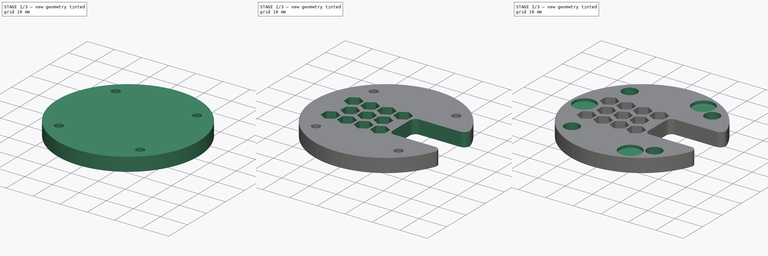
[diagram: build sequence overview — one tinted view per stage of 3, left to right]
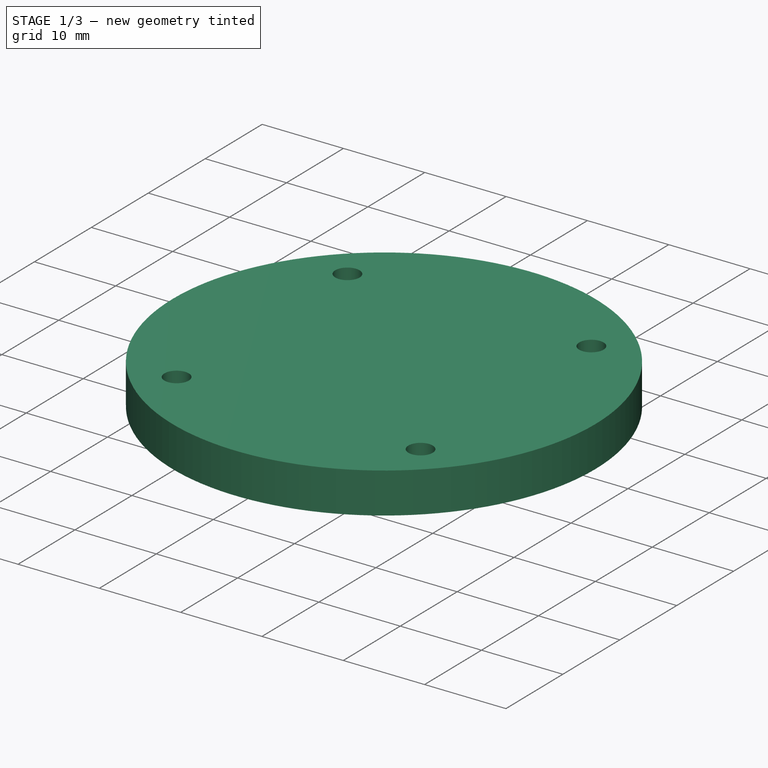
[diagram: stage 1 of 3 — iso view after this stage's code; geometry added in this stage tinted green]
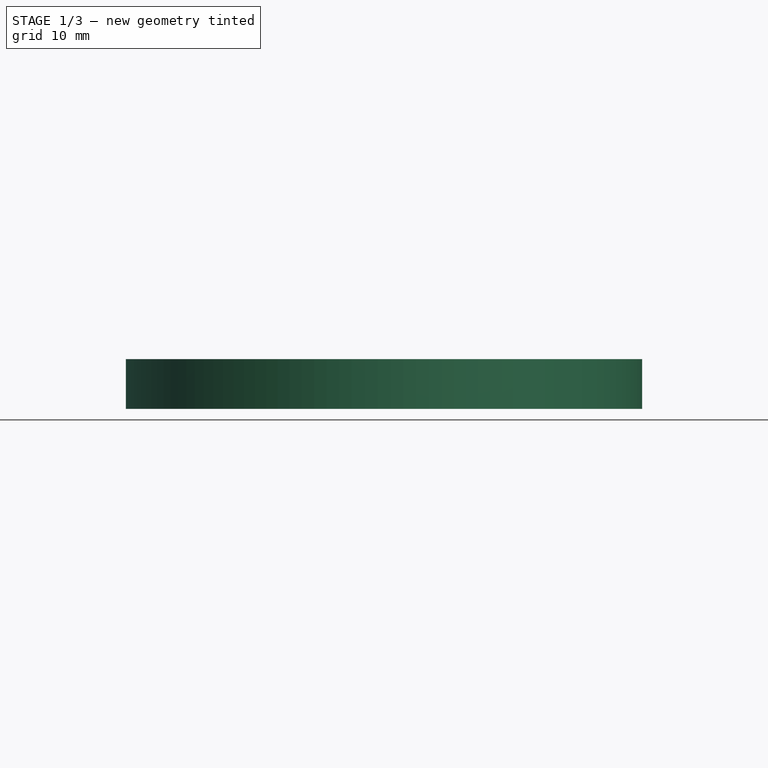
[diagram: stage 1 of 3 — front view after this stage's code; geometry added in this stage tinted green]
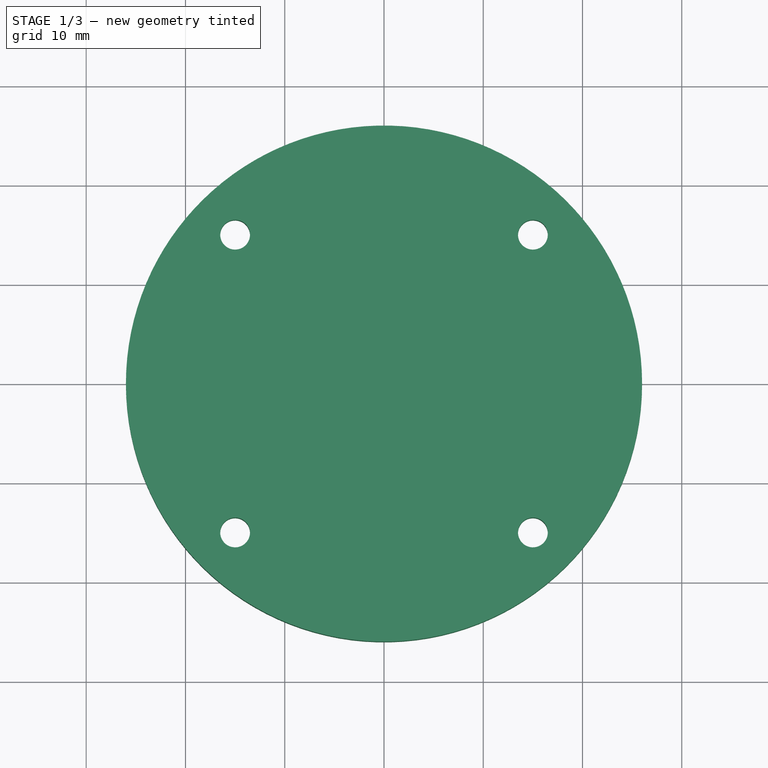
[diagram: stage 1 of 3 — top view after this stage's code; geometry added in this stage tinted green]
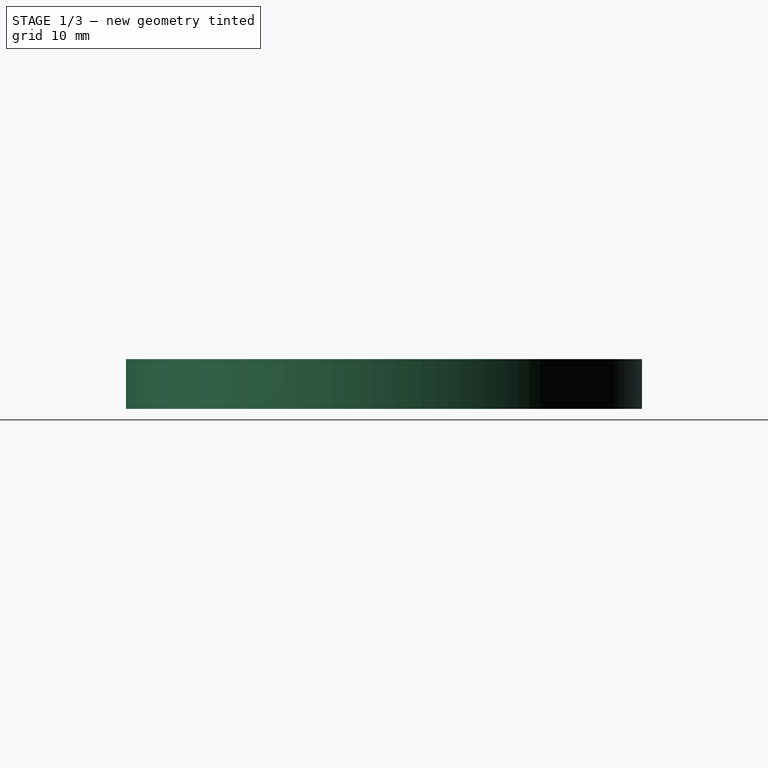
[diagram: stage 1 of 3 — right view after this stage's code; geometry added in this stage tinted green]
FCSTD DOCUMENT  (FreeCAD 0.21R33771 (Git))
Label: base_lid
License: All rights reserved
LicenseURL: http://en.wikipedia.org/wiki/All_rights_reserved
objects: Sketcher::SketchObject×6, PartDesign::Pocket×5, PartDesign::Pad×1, PartDesign::Fillet×1, PartDesign::Body×1
note: 21 computed .brp shape members not serialized (recipe doc carries the construction recipe); baked Part::Feature solids carry a one-line shape summary decoded from their .brp

FEATURE [Sketcher::SketchObject] Sketch
  FullyConstrained = false
  MapMode = 5
  Support = -> [XY_Plane]
  sketch-geometry (1):
    g0: Circle CenterX=0 CenterY=0 CenterZ=0 NormalX=0 NormalY=0 NormalZ=1 AngleXU=0 Radius=26
  constraints (1):
    c: Coincident(g0,g-1)
FEATURE [PartDesign::Pad] Pad
  Direction = (0,0,1)
  Length = 5
  Length2 = 10
  Profile = -> Sketch
  ReferenceAxis = -> Sketch [N_Axis]
  Type = 0
FEATURE [Sketcher::SketchObject] Sketch001
  FullyConstrained = false
  MapMode = 5
  Placement = pos=(0,0,5) rot=(0,0,1;0rad)
  Support = -> [Pad]
  sketch-geometry (4):
    g0: Circle CenterX=-15 CenterY=15 CenterZ=0 NormalX=0 NormalY=0 NormalZ=1 AngleXU=0 Radius=1.5
    g1: Circle CenterX=15 CenterY=15 CenterZ=0 NormalX=0 NormalY=0 NormalZ=1 AngleXU=0 Radius=1.5
    g2: Circle CenterX=15 CenterY=-15 CenterZ=0 NormalX=0 NormalY=0 NormalZ=1 AngleXU=0 Radius=1.5
    g3: Circle CenterX=-15 CenterY=-15 CenterZ=0 NormalX=0 NormalY=0 NormalZ=1 AngleXU=0 Radius=1.5
FEATURE [PartDesign::Pocket] Pocket
  BaseFeature = -> Pad
  Direction = (0,0,-1)
  Length = 5
  Length2 = 5
  Profile = -> Sketch001
  ReferenceAxis = -> Sketch001 [N_Axis]
  Type = 1
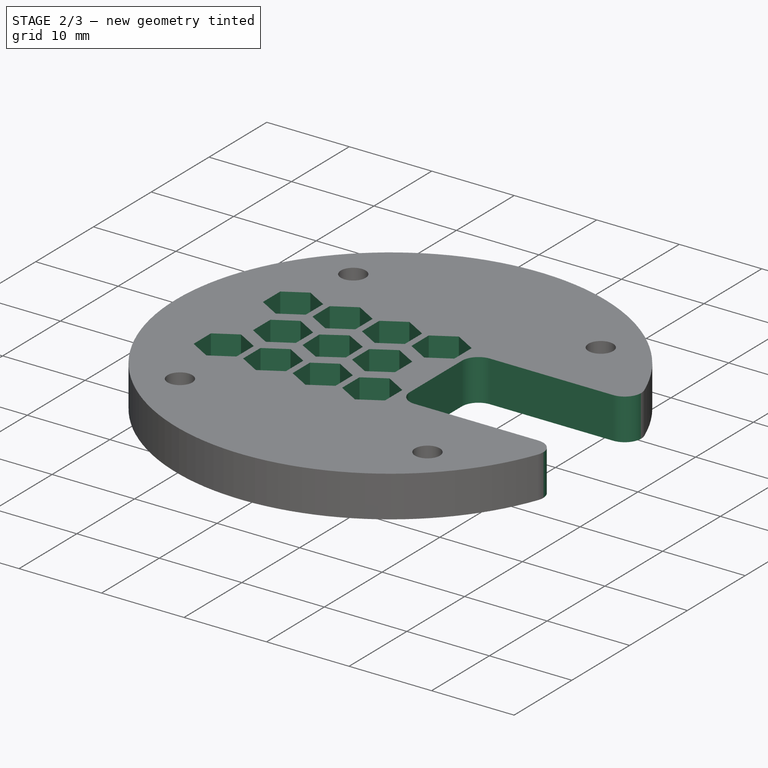
[diagram: stage 2 of 3 — iso view after this stage's code; geometry added in this stage tinted green]
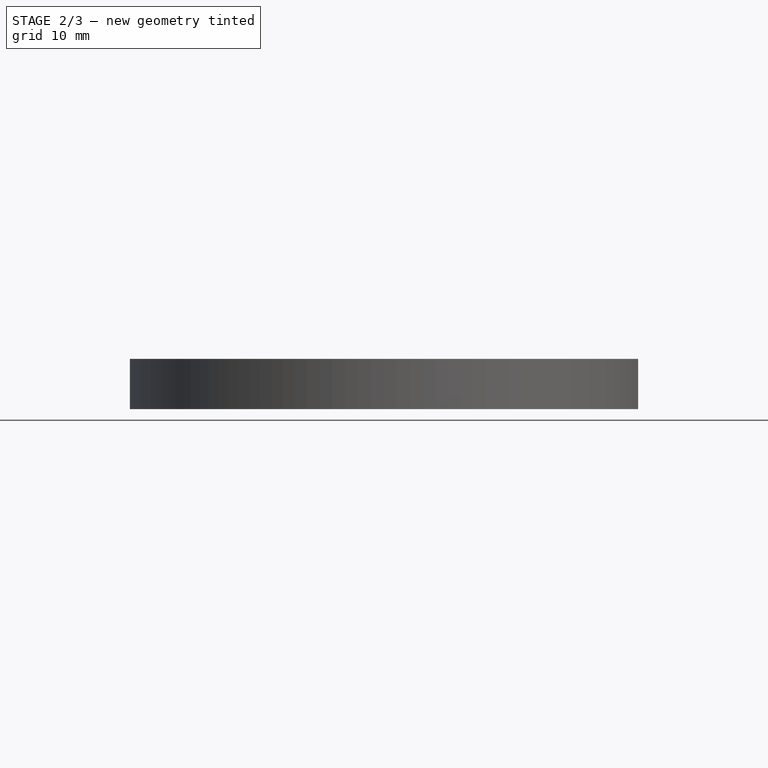
[diagram: stage 2 of 3 — front view after this stage's code; geometry added in this stage tinted green]
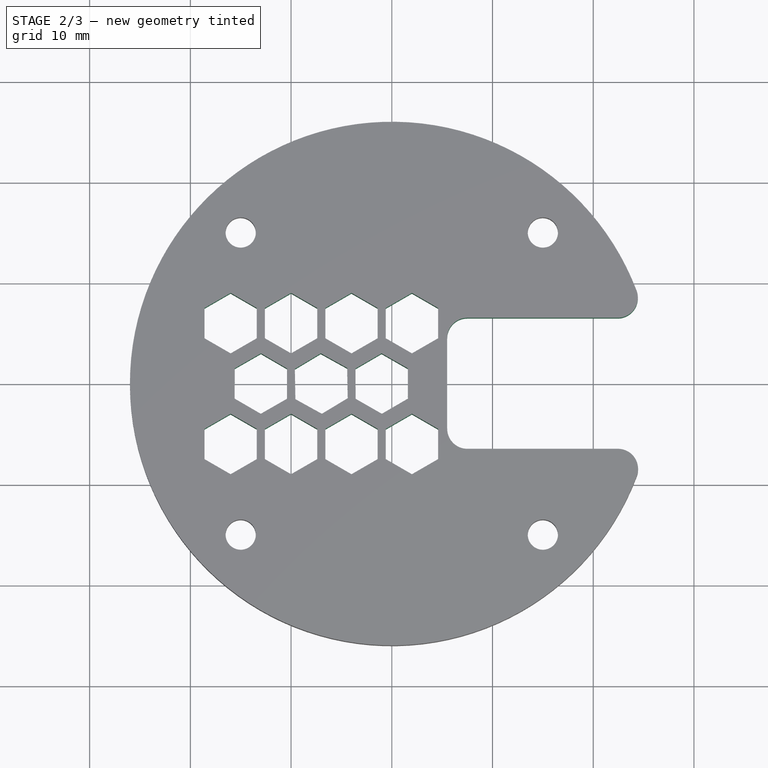
[diagram: stage 2 of 3 — top view after this stage's code; geometry added in this stage tinted green]
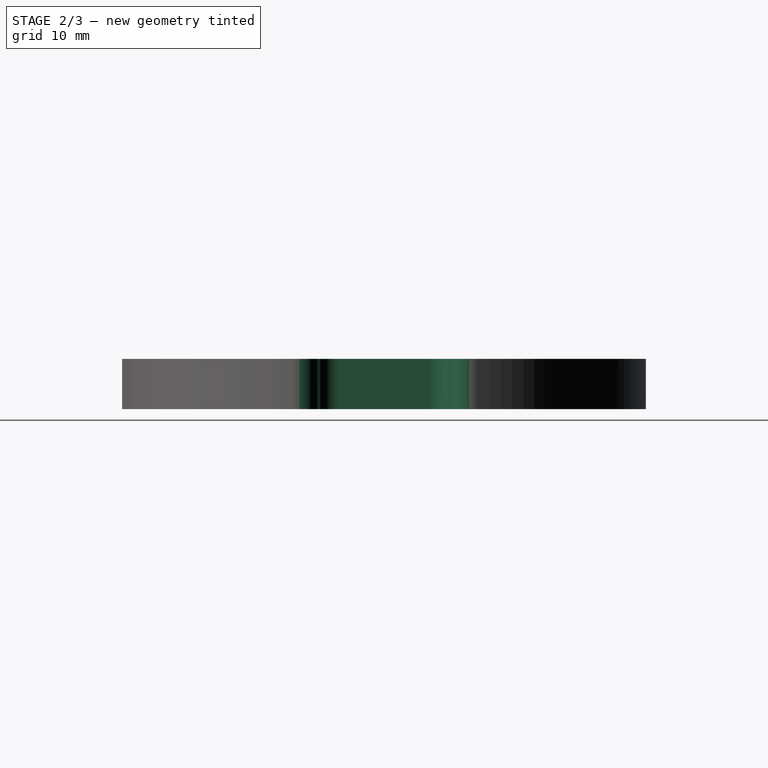
[diagram: stage 2 of 3 — right view after this stage's code; geometry added in this stage tinted green]
FEATURE [Sketcher::SketchObject] Sketch002
  FullyConstrained = false
  MapMode = 5
  Placement = pos=(0,0,5) rot=(0,0,1;0rad)
  Support = -> [Pocket]
  sketch-geometry (4):
    g0: LineSegment StartX=26 StartY=6.53144 StartZ=0 EndX=5.5 EndY=6.53144 EndZ=0
    g1: LineSegment StartX=5.5 StartY=6.53144 StartZ=0 EndX=5.5 EndY=-6.47571 EndZ=0
    g2: LineSegment StartX=5.5 StartY=-6.47571 StartZ=0 EndX=26 EndY=-6.47571 EndZ=0
    g3: LineSegment StartX=26 StartY=-6.47571 StartZ=0 EndX=26 EndY=6.53144 EndZ=0
  constraints (8):
    c: Coincident(g0,g1)
    c: Coincident(g1,g2)
    c: Coincident(g2,g3)
    c: Coincident(g3,g0)
    c: Horizontal(g0)
    c: Horizontal(g2)
    c: Vertical(g1)
    c: Vertical(g3)
FEATURE [PartDesign::Pocket] Pocket001
  BaseFeature = -> Pocket
  Direction = (0,0,-1)
  Length = 5
  Length2 = 5
  Profile = -> Sketch002
  ReferenceAxis = -> Sketch002 [N_Axis]
  Type = 0
FEATURE [PartDesign::Fillet] Fillet
  Base = -> Pocket001 [Edge20,Edge13,Edge2,Edge4]
  BaseFeature = -> Pocket001
  Radius = 2
  SupportTransform = false
  UseAllEdges = false
FEATURE [Sketcher::SketchObject] Sketch003
  FullyConstrained = false
  MapMode = 5
  Placement = pos=(0,0,5) rot=(0,0,1;0rad)
  Support = -> [Fillet]
  sketch-geometry (77):
    g0: LineSegment StartX=-16 StartY=9 StartZ=0 EndX=-18.5981 EndY=7.5 EndZ=0
    g1: LineSegment StartX=-18.5981 StartY=7.5 StartZ=0 EndX=-18.5981 EndY=4.5 EndZ=0
    g2: LineSegment StartX=-18.5981 StartY=4.5 StartZ=0 EndX=-16 EndY=3 EndZ=0
    g3: LineSegment StartX=-16 StartY=3 StartZ=0 EndX=-13.4019 EndY=4.5 EndZ=0
    g4: LineSegment StartX=-13.4019 StartY=4.5 StartZ=0 EndX=-13.4019 EndY=7.5 EndZ=0
    g5: LineSegment StartX=-13.4019 StartY=7.5 StartZ=0 EndX=-16 EndY=9 EndZ=0
    g6: Circle CenterX=-16 CenterY=6 CenterZ=0 NormalX=0 NormalY=0 NormalZ=1 AngleXU=0 Radius=3
    g7: LineSegment StartX=-10 StartY=9 StartZ=0 EndX=-12.5981 EndY=7.5 EndZ=0
    g8: LineSegment StartX=-12.5981 StartY=7.5 StartZ=0 EndX=-12.5981 EndY=4.5 EndZ=0
    g9: LineSegment StartX=-12.5981 StartY=4.5 StartZ=0 EndX=-10 EndY=3 EndZ=0
    g10: LineSegment StartX=-10 StartY=3 StartZ=0 EndX=-7.40192 EndY=4.5 EndZ=0
    g11: LineSegment StartX=-7.40192 StartY=4.5 StartZ=0 EndX=-7.40192 EndY=7.5 EndZ=0
    g12: LineSegment StartX=-7.40192 StartY=7.5 StartZ=0 EndX=-10 EndY=9 EndZ=0
    g13: Circle CenterX=-10 CenterY=6 CenterZ=0 NormalX=0 NormalY=0 NormalZ=1 AngleXU=0 Radius=3
    g14: LineSegment StartX=-4 StartY=9 StartZ=0 EndX=-6.59808 EndY=7.5 EndZ=0
    g15: LineSegment StartX=-6.59808 StartY=7.5 StartZ=0 EndX=-6.59808 EndY=4.5 EndZ=0
    g16: LineSegment StartX=-6.59808 StartY=4.5 StartZ=0 EndX=-4 EndY=3 EndZ=0
    g17: LineSegment StartX=-4 StartY=3 StartZ=0 EndX=-1.40192 EndY=4.5 EndZ=0
    g18: LineSegment StartX=-1.40192 StartY=4.5 StartZ=0 EndX=-1.40192 EndY=7.5 EndZ=0
    g19: LineSegment StartX=-1.40192 StartY=7.5 StartZ=0 EndX=-4 EndY=9 EndZ=0
    g20: Circle CenterX=-4 CenterY=6 CenterZ=0 NormalX=0 NormalY=0 NormalZ=1 AngleXU=0 Radius=3
    g21: LineSegment StartX=2 StartY=9 StartZ=0 EndX=-0.598076 EndY=7.5 EndZ=0
    g22: LineSegment StartX=-0.598076 StartY=7.5 StartZ=0 EndX=-0.598076 EndY=4.5 EndZ=0
    g23: LineSegment StartX=-0.598076 StartY=4.5 StartZ=0 EndX=2 EndY=3 EndZ=0
    g24: LineSegment StartX=2 StartY=3 StartZ=0 EndX=4.59808 EndY=4.5 EndZ=0
    g25: LineSegment StartX=4.59808 StartY=4.5 StartZ=0 EndX=4.59808 EndY=7.5 EndZ=0
    g26: LineSegment StartX=4.59808 StartY=7.5 StartZ=0 EndX=2 EndY=9 EndZ=0
    g27: Circle CenterX=2 CenterY=6 CenterZ=0 NormalX=0 NormalY=0 NormalZ=1 AngleXU=0 Radius=3
    g28: LineSegment StartX=-12.991 StartY=3 StartZ=0 EndX=-15.5936 EndY=1.50782 EndZ=0
    g29: LineSegment StartX=-15.5936 StartY=1.50782 StartZ=0 EndX=-15.6026 EndY=-1.49218 EndZ=0
    g30: LineSegment StartX=-15.6026 StartY=-1.49218 StartZ=0 EndX=-13.009 EndY=-3 EndZ=0
    g31: LineSegment StartX=-13.009 StartY=-3 StartZ=0 EndX=-10.4064 EndY=-1.50782 EndZ=0
    g32: LineSegment StartX=-10.4064 StartY=-1.50782 StartZ=0 EndX=-10.3974 EndY=1.49218 EndZ=0
    g33: LineSegment StartX=-10.3974 StartY=1.49218 StartZ=0 EndX=-12.991 EndY=3 EndZ=0
    g34: Circle CenterX=-13 CenterY=0 CenterZ=0 NormalX=0 NormalY=0 NormalZ=1 AngleXU=0 Radius=3.00001
    g35: LineSegment StartX=-7.05419 StartY=3 StartZ=0 EndX=-9.62517 EndY=1.45307 EndZ=0
    g36: LineSegment StartX=-9.62517 StartY=1.45307 StartZ=0 EndX=-9.57098 EndY=-1.54693 EndZ=0
    g37: LineSegment StartX=-9.57098 StartY=-1.54693 StartZ=0 EndX=-6.94581 EndY=-3 EndZ=0
    g38: LineSegment StartX=-6.94581 StartY=-3 StartZ=0 EndX=-4.37483 EndY=-1.45307 EndZ=0
    g39: LineSegment StartX=-4.37483 StartY=-1.45307 StartZ=0 EndX=-4.42902 EndY=1.54693 EndZ=0
    g40: LineSegment StartX=-4.42902 StartY=1.54693 StartZ=0 EndX=-7.05419 EndY=3 EndZ=0
    g41: Circle CenterX=-7 CenterY=0 CenterZ=0 NormalX=0 NormalY=0 NormalZ=1 AngleXU=0 Radius=3.00049
    g42: LineSegment StartX=-1.01214 StartY=3 StartZ=0 EndX=-3.60415 EndY=1.48949 EndZ=0
    g43: LineSegment StartX=-3.60415 StartY=1.48949 StartZ=0 EndX=-3.59201 EndY=-1.51051 EndZ=0
    g44: LineSegment StartX=-3.59201 StartY=-1.51051 StartZ=0 EndX=-0.987859 EndY=-3 EndZ=0
    g45: LineSegment StartX=-0.987859 StartY=-3 StartZ=0 EndX=1.60415 EndY=-1.48949 EndZ=0
    g46: LineSegment StartX=1.60415 StartY=-1.48949 StartZ=0 EndX=1.59201 EndY=1.51051 EndZ=0
    g47: LineSegment StartX=1.59201 StartY=1.51051 StartZ=0 EndX=-1.01214 EndY=3 EndZ=0
    g48: Circle CenterX=-1 CenterY=0 CenterZ=0 NormalX=0 NormalY=0 NormalZ=1 AngleXU=0 Radius=3.00002
    g49: LineSegment StartX=-16 StartY=-3 StartZ=0 EndX=-18.5981 EndY=-4.5 EndZ=0
    g50: LineSegment StartX=-18.5981 StartY=-4.5 StartZ=0 EndX=-18.5981 EndY=-7.5 EndZ=0
    g51: LineSegment StartX=-18.5981 StartY=-7.5 StartZ=0 EndX=-16 EndY=-9 EndZ=0
    g52: LineSegment StartX=-16 StartY=-9 StartZ=0 EndX=-13.4019 EndY=-7.5 EndZ=0
    g53: LineSegment StartX=-13.4019 StartY=-7.5 StartZ=0 EndX=-13.4019 EndY=-4.5 EndZ=0
    g54: LineSegment StartX=-13.4019 StartY=-4.5 StartZ=0 EndX=-16 EndY=-3 EndZ=0
    g55: Circle CenterX=-16 CenterY=-6 CenterZ=0 NormalX=0 NormalY=0 NormalZ=1 AngleXU=0 Radius=3
    g56: LineSegment StartX=-10 StartY=-3 StartZ=0 EndX=-12.5981 EndY=-4.5 EndZ=0
    g57: LineSegment StartX=-12.5981 StartY=-4.5 StartZ=0 EndX=-12.5981 EndY=-7.5 EndZ=0
    g58: LineSegment StartX=-12.5981 StartY=-7.5 StartZ=0 EndX=-10 EndY=-9 EndZ=0
    g59: LineSegment StartX=-10 StartY=-9 StartZ=0 EndX=-7.40192 EndY=-7.5 EndZ=0
    g60: LineSegment StartX=-7.40192 StartY=-7.5 StartZ=0 EndX=-7.40192 EndY=-4.5 EndZ=0
    g61: LineSegment StartX=-7.40192 StartY=-4.5 StartZ=0 EndX=-10 EndY=-3 EndZ=0
    g62: Circle CenterX=-10 CenterY=-6 CenterZ=0 NormalX=0 NormalY=0 NormalZ=1 AngleXU=0 Radius=3
    g63: LineSegment StartX=-4 StartY=-3 StartZ=0 EndX=-6.59808 EndY=-4.5 EndZ=0
    g64: LineSegment StartX=-6.59808 StartY=-4.5 StartZ=0 EndX=-6.59808 EndY=-7.5 EndZ=0
    g65: LineSegment StartX=-6.59808 StartY=-7.5 StartZ=0 EndX=-4 EndY=-9 EndZ=0
    g66: LineSegment StartX=-4 StartY=-9 StartZ=0 EndX=-1.40192 EndY=-7.5 EndZ=0
    g67: LineSegment StartX=-1.40192 StartY=-7.5 StartZ=0 EndX=-1.40192 EndY=-4.5 EndZ=0
    g68: LineSegment StartX=-1.40192 StartY=-4.5 StartZ=0 EndX=-4 EndY=-3 EndZ=0
    g69: Circle CenterX=-4 CenterY=-6 CenterZ=0 NormalX=0 NormalY=0 NormalZ=1 AngleXU=0 Radius=3
    g70: LineSegment StartX=2 StartY=-3 StartZ=0 EndX=-0.598076 EndY=-4.5 EndZ=0
    g71: LineSegment StartX=-0.598076 StartY=-4.5 StartZ=0 EndX=-0.598076 EndY=-7.5 EndZ=0
    g72: LineSegment StartX=-0.598076 StartY=-7.5 StartZ=0 EndX=2 EndY=-9 EndZ=0
    g73: LineSegment StartX=2 StartY=-9 StartZ=0 EndX=4.59808 EndY=-7.5 EndZ=0
    g74: LineSegment StartX=4.59808 StartY=-7.5 StartZ=0 EndX=4.59808 EndY=-4.5 EndZ=0
    g75: LineSegment StartX=4.59808 StartY=-4.5 StartZ=0 EndX=2 EndY=-3 EndZ=0
    g76: Circle CenterX=2 CenterY=-6 CenterZ=0 NormalX=0 NormalY=0 NormalZ=1 AngleXU=0 Radius=3
  constraints (146):
    c: Coincident(g0,g1)
    c: Coincident(g1,g2)
    c: Coincident(g2,g3)
    c: Coincident(g3,g4)
    c: Coincident(g4,g5)
    c: Coincident(g5,g0)
    c: Equal(g0, g1-g5) x5
    c: PointOnObject(g0,g6)
    c: PointOnObject(g1,g6)
    c: PointOnObject(g2,g6)
    c: PointOnObject(g3,g6)
    c: PointOnObject(g4,g6)
    c: PointOnObject(g5,g6)
    c: Coincident(g7,g8)
    c: Coincident(g8,g9)
    c: Coincident(g9,g10)
    c: Coincident(g10,g11)
    c: Coincident(g11,g12)
    c: Coincident(g12,g7)
    c: Equal(g7, g8-g12) x5
    c: PointOnObject(g7,g13)
    c: PointOnObject(g8,g13)
    c: PointOnObject(g9,g13)
    c: PointOnObject(g10,g13)
    c: PointOnObject(g11,g13)
    c: PointOnObject(g12,g13)
    c: Coincident(g14,g15)
    c: Coincident(g15,g16)
    c: Coincident(g16,g17)
    c: Coincident(g17,g18)
    c: Coincident(g18,g19)
    c: Coincident(g19,g14)
    c: Equal(g14, g15-g19) x5
    c: PointOnObject(g14,g20)
    c: PointOnObject(g15,g20)
    c: PointOnObject(g16,g20)
    c: PointOnObject(g17,g20)
    c: PointOnObject(g18,g20)
    c: PointOnObject(g19,g20)
    c: Coincident(g21,g22)
    c: Coincident(g22,g23)
    c: Coincident(g23,g24)
    c: Coincident(g24,g25)
    c: Coincident(g25,g26)
    c: Coincident(g26,g21)
    c: Equal(g21, g22-g26) x5
    c: PointOnObject(g21,g27)
    c: PointOnObject(g22,g27)
    c: PointOnObject(g23,g27)
    c: PointOnObject(g24,g27)
    c: PointOnObject(g25,g27)
    c: PointOnObject(g26,g27)
    c: Coincident(g28,g29)
    c: Coincident(g29,g30)
    c: Coincident(g30,g31)
    c: Coincident(g31,g32)
    c: Coincident(g32,g33)
    c: Coincident(g33,g28)
    c: Equal(g28, g29-g33) x5
    c: PointOnObject(g28,g34)
    c: PointOnObject(g29,g34)
    c: PointOnObject(g30,g34)
    c: PointOnObject(g31,g34)
    c: PointOnObject(g32,g34)
    c: PointOnObject(g33,g34)
    c: PointOnObject(g34,g-1)
    c: Coincident(g35,g36)
    c: Coincident(g36,g37)
    c: Coincident(g37,g38)
    c: Coincident(g38,g39)
    c: Coincident(g39,g40)
    c: Coincident(g40,g35)
    c: Equal(g35, g36-g40) x5
    c: PointOnObject(g35,g41)
    c: PointOnObject(g36,g41)
    c: PointOnObject(g37,g41)
    c: PointOnObject(g38,g41)
    c: PointOnObject(g39,g41)
    c: PointOnObject(g40,g41)
    c: PointOnObject(g41,g-1)
    c: Coincident(g42,g43)
    c: Coincident(g43,g44)
    c: Coincident(g44,g45)
    c: Coincident(g45,g46)
    c: Coincident(g46,g47)
    c: Coincident(g47,g42)
    c: Equal(g42, g43-g47) x5
    c: PointOnObject(g42,g48)
    c: PointOnObject(g43,g48)
    c: PointOnObject(g44,g48)
    c: PointOnObject(g45,g48)
    c: PointOnObject(g46,g48)
    c: PointOnObject(g47,g48)
    c: PointOnObject(g48,g-1)
    c: Coincident(g49,g50)
    c: Coincident(g50,g51)
    c: Coincident(g51,g52)
    c: Coincident(g52,g53)
    c: Coincident(g53,g54)
    c: Coincident(g54,g49)
    c: Equal(g49, g50-g54) x5
    c: PointOnObject(g49,g55)
    c: PointOnObject(g50,g55)
    c: PointOnObject(g51,g55)
    c: PointOnObject(g52,g55)
    c: PointOnObject(g53,g55)
    c: PointOnObject(g54,g55)
    c: Coincident(g56,g57)
    c: Coincident(g57,g58)
    c: Coincident(g58,g59)
    c: Coincident(g59,g60)
    c: Coincident(g60,g61)
    c: Coincident(g61,g56)
    c: Equal(g56, g57-g61) x5
    c: PointOnObject(g56,g62)
    c: PointOnObject(g57,g62)
    c: PointOnObject(g58,g62)
    c: PointOnObject(g59,g62)
    c: PointOnObject(g60,g62)
    c: PointOnObject(g61,g62)
    c: Coincident(g63,g64)
    c: Coincident(g64,g65)
    c: Coincident(g65,g66)
    c: Coincident(g66,g67)
    c: Coincident(g67,g68)
    c: Coincident(g68,g63)
    c: Equal(g63, g64-g68) x5
    c: PointOnObject(g63,g69)
    c: PointOnObject(g64,g69)
    c: PointOnObject(g65,g69)
    c: PointOnObject(g66,g69)
    c: PointOnObject(g67,g69)
    c: PointOnObject(g68,g69)
    c: Coincident(g70,g71)
    c: Coincident(g71,g72)
    c: Coincident(g72,g73)
    c: Coincident(g73,g74)
    c: Coincident(g74,g75)
    c: Coincident(g75,g70)
    c: Equal(g70, g71-g75) x5
    c: PointOnObject(g70,g76)
    c: PointOnObject(g71,g76)
    c: PointOnObject(g72,g76)
    c: PointOnObject(g73,g76)
    c: PointOnObject(g74,g76)
    c: PointOnObject(g75,g76)
FEATURE [PartDesign::Pocket] Pocket002
  BaseFeature = -> Fillet
  Direction = (0,0,-1)
  Length = 5
  Length2 = 5
  Profile = -> Sketch003
  ReferenceAxis = -> Sketch003 [N_Axis]
  Type = 0
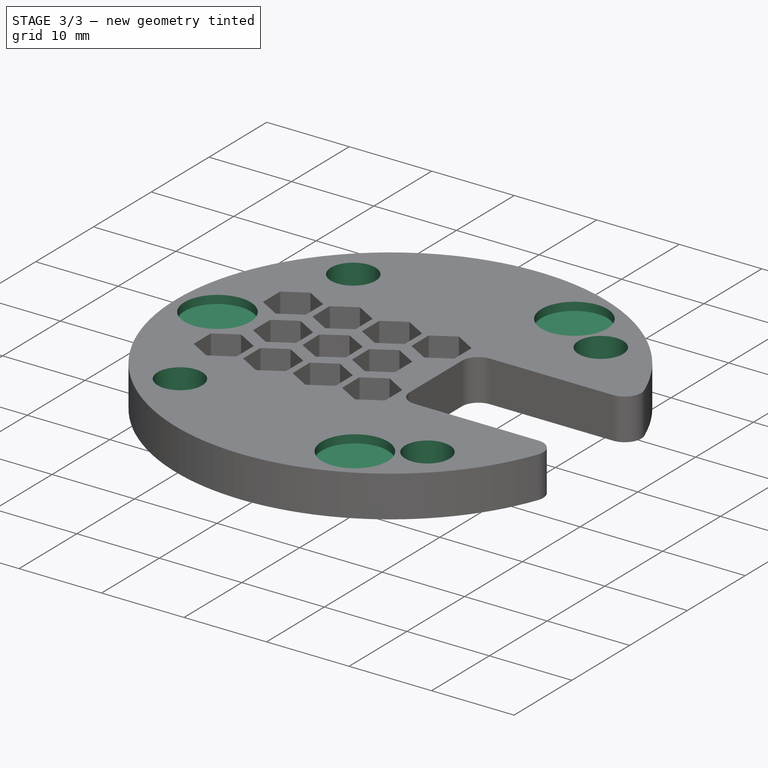
[diagram: stage 3 of 3 — iso view after this stage's code; geometry added in this stage tinted green]
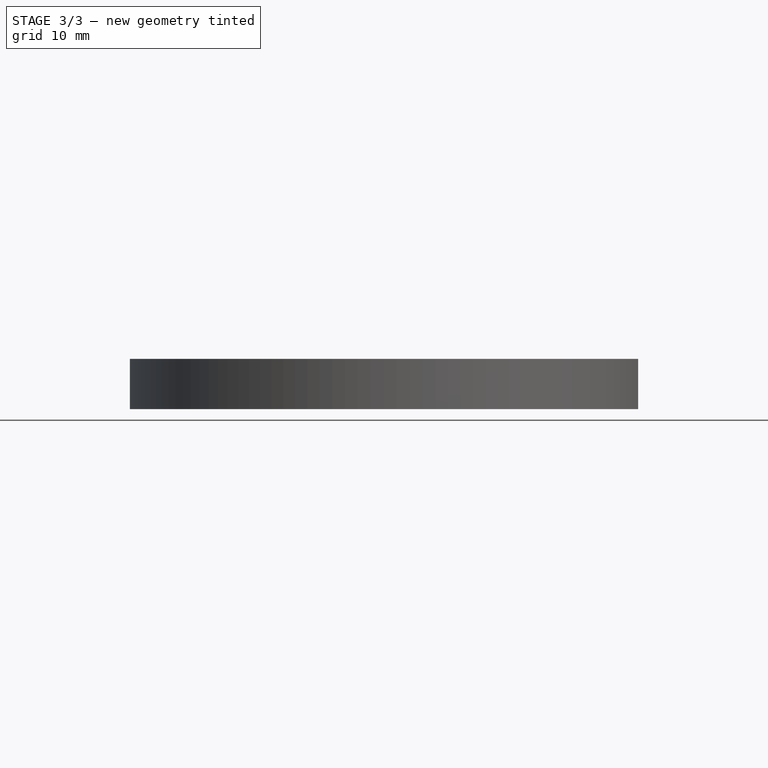
[diagram: stage 3 of 3 — front view after this stage's code; geometry added in this stage tinted green]
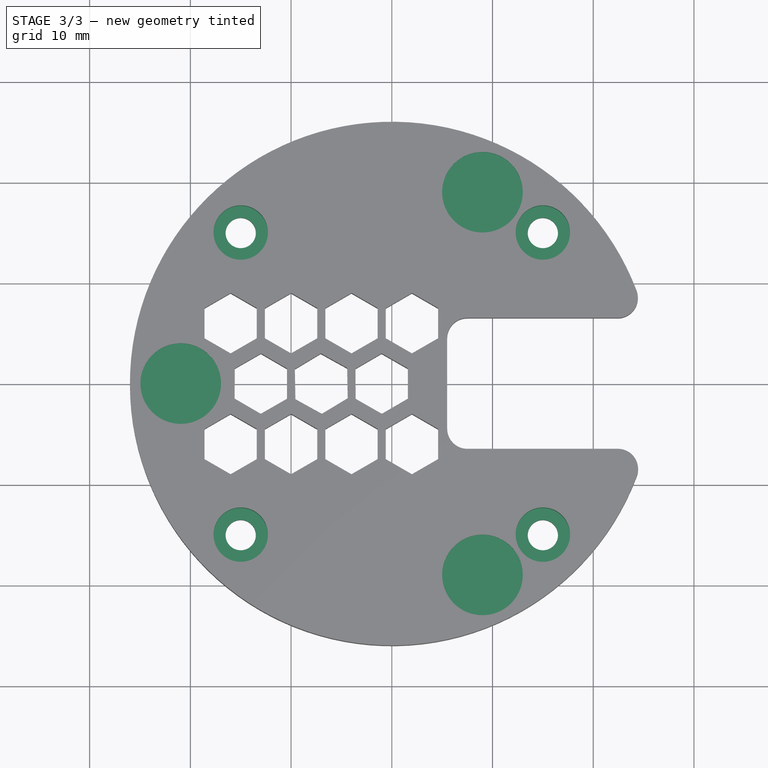
[diagram: stage 3 of 3 — top view after this stage's code; geometry added in this stage tinted green]
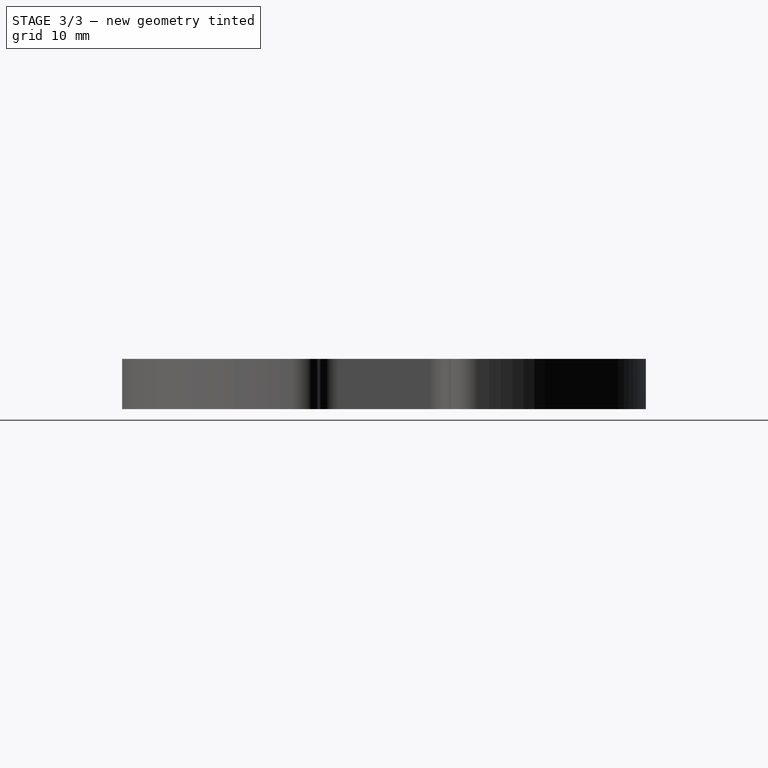
[diagram: stage 3 of 3 — right view after this stage's code; geometry added in this stage tinted green]
FEATURE [Sketcher::SketchObject] Sketch004
  FullyConstrained = false
  MapMode = 5
  Placement = pos=(0,0,5) rot=(0,0,1;0rad)
  Support = -> [Pocket002]
  sketch-geometry (3):
    g0: Circle CenterX=-20.9554 CenterY=0 CenterZ=0 NormalX=0 NormalY=0 NormalZ=1 AngleXU=0 Radius=4.00025
    g1: Circle CenterX=9 CenterY=19 CenterZ=0 NormalX=0 NormalY=0 NormalZ=1 AngleXU=0 Radius=4
    g2: Circle CenterX=9 CenterY=-19 CenterZ=0 NormalX=0 NormalY=0 NormalZ=1 AngleXU=0 Radius=4
  constraints (1):
    c: PointOnObject(g0,g-1)
FEATURE [PartDesign::Pocket] Pocket003
  BaseFeature = -> Pocket002
  Direction = (0,0,-1)
  Length = 1
  Length2 = 5
  Profile = -> Sketch004
  ReferenceAxis = -> Sketch004 [N_Axis]
  Type = 0
FEATURE [Sketcher::SketchObject] Sketch005
  FullyConstrained = false
  MapMode = 5
  Placement = pos=(0,0,5) rot=(0,0,1;0rad)
  Support = -> [Pocket003]
  sketch-geometry (4):
    g0: Circle CenterX=-15 CenterY=15 CenterZ=0 NormalX=0 NormalY=0 NormalZ=1 AngleXU=0 Radius=2.7
    g1: Circle CenterX=15 CenterY=15 CenterZ=0 NormalX=0 NormalY=0 NormalZ=1 AngleXU=0 Radius=2.7
    g2: Circle CenterX=15 CenterY=-15 CenterZ=0 NormalX=0 NormalY=0 NormalZ=1 AngleXU=0 Radius=2.7
    g3: Circle CenterX=-15 CenterY=-15 CenterZ=0 NormalX=0 NormalY=0 NormalZ=1 AngleXU=0 Radius=2.7
FEATURE [PartDesign::Pocket] Pocket004
  BaseFeature = -> Pocket003
  Direction = (0,0,-1)
  Length = 3
  Length2 = 5
  Profile = -> Sketch005
  ReferenceAxis = -> Sketch005 [N_Axis]
  Type = 0
FEATURE [PartDesign::Body] Body
  Group = -> [Sketch,Pad,Sketch001,Pocket,Sketch002,Pocket001,Fillet,Sketch003,Pocket002,Sketch004,Pocket003,Sketch005,Pocket004]
  Origin = -> Origin
  Tip = -> Pocket004
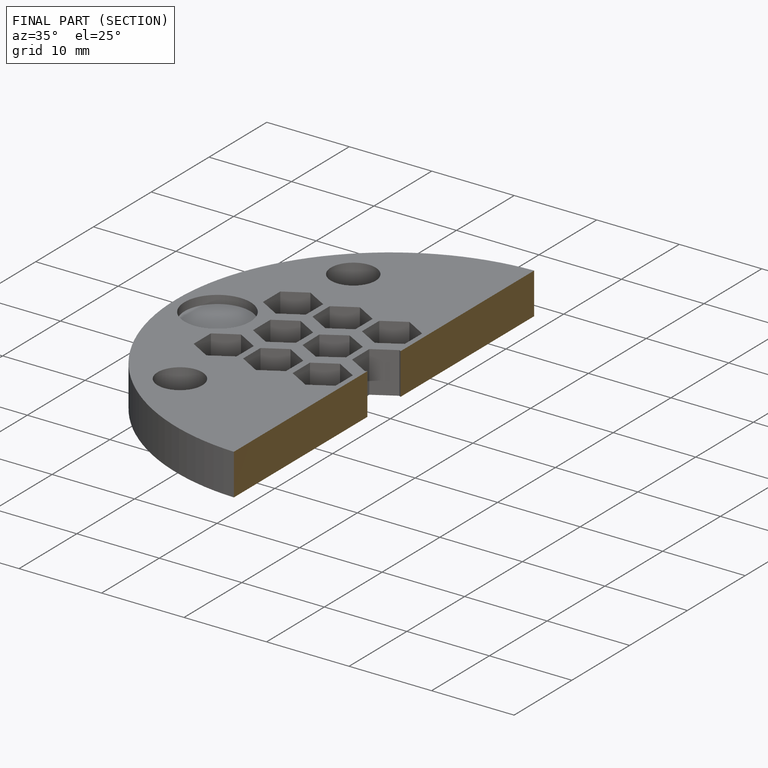
[diagram: finished part — half-section view (interior)]
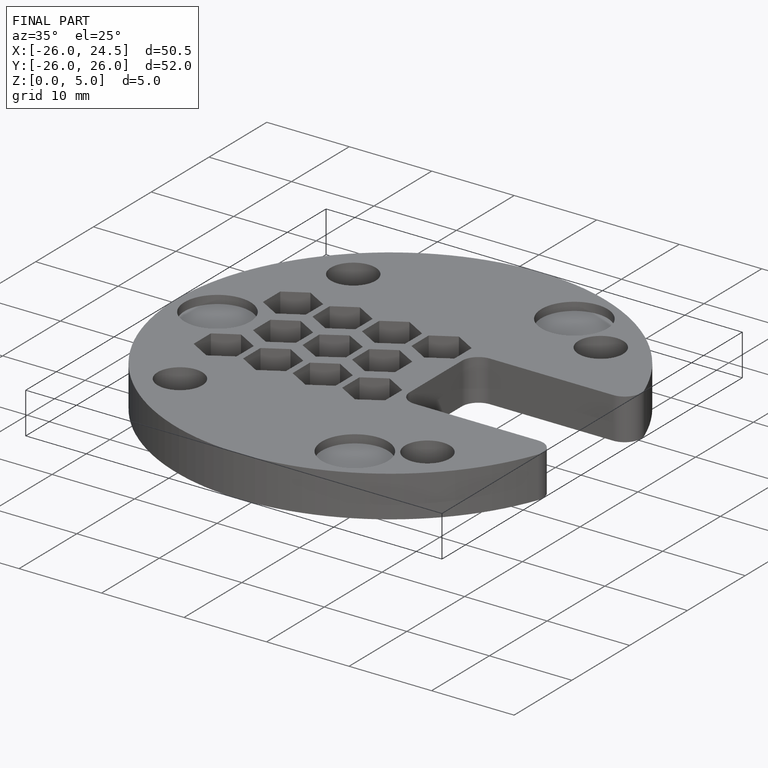
[diagram: finished part — iso view with bounding-box wireframe]
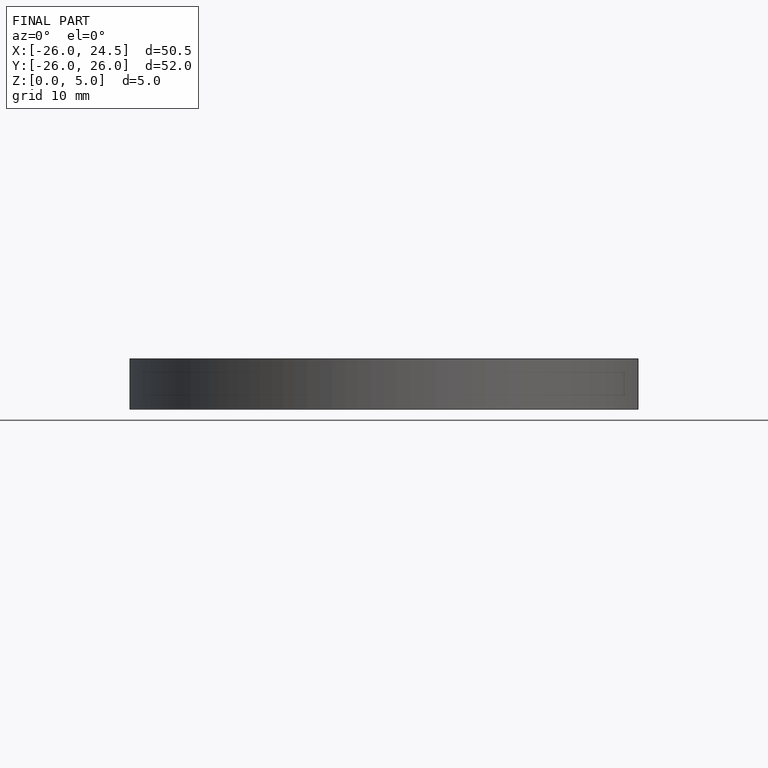
[diagram: finished part — front view with bounding-box wireframe]
